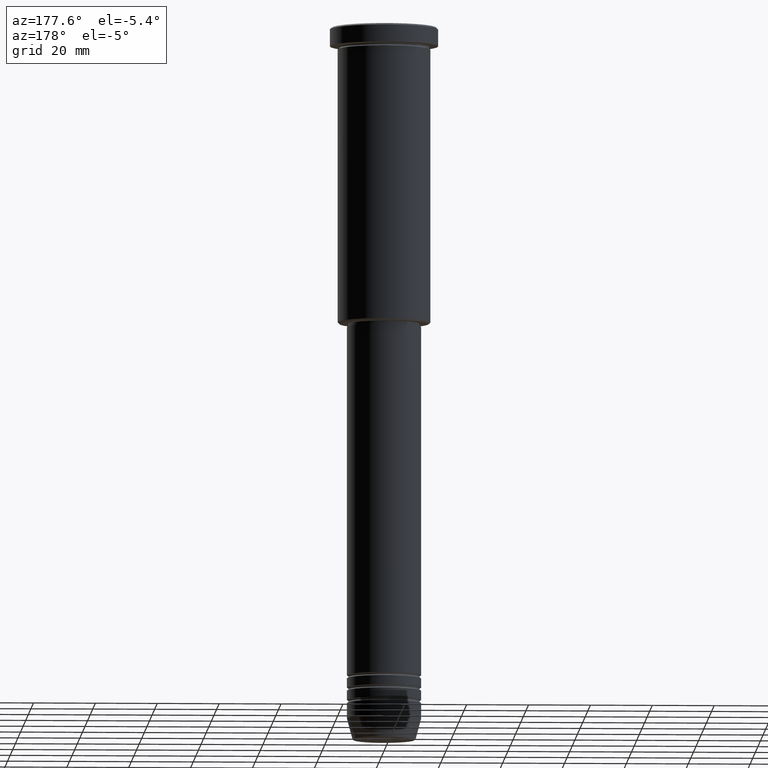
[diagram: clean part render]
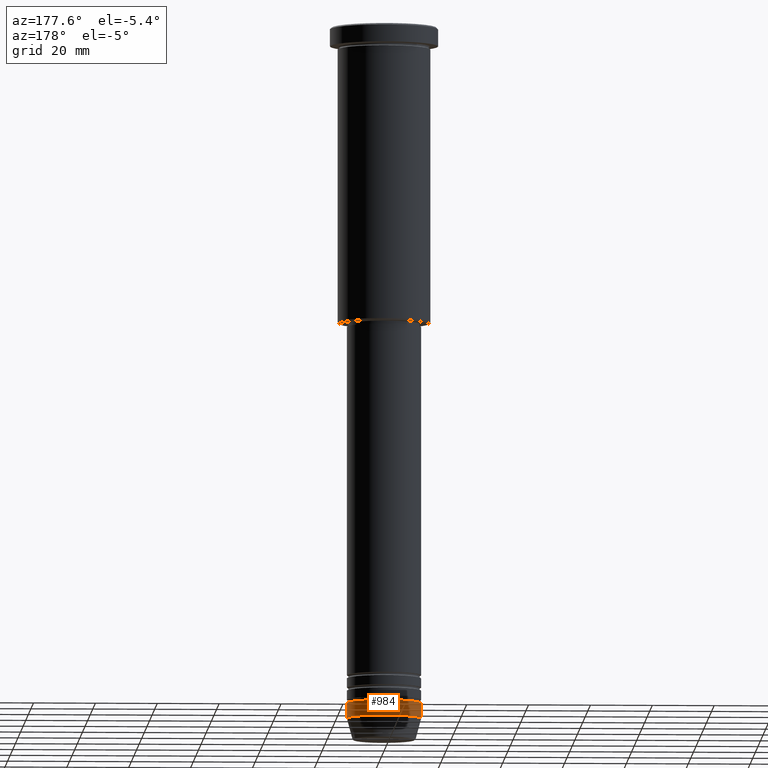
[diagram: same view with one face highlighted and labeled with its STEP entity id]
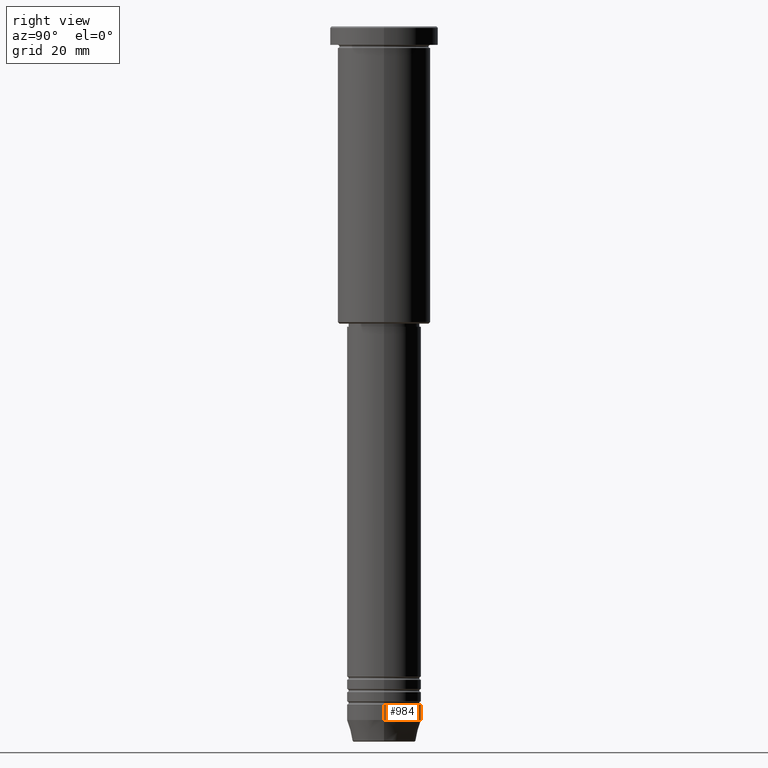
[diagram: same view with one face highlighted and labeled with its STEP entity id]
A machine part, auxiliary view. The second image highlights one B-rep face of the part: STEP entity #984.
A second angle (right view) of the same face is appended — the face is thin or edge-on in the first view.
In plain terms, the highlighted cylindrical surface (partial cylindrical patch) has radius 12 mm, axis along (-0, -0, 1).
Its self-contained STEP definition (entity closure, byte-faithful):
#12 = DIRECTION ( 'NONE',  ( -0.000000000000000000, -0.000000000000000000, 1.000000000000000000 ) ) ;
#46 = CARTESIAN_POINT ( 'NONE',  ( 0.000000000000000000, 0.000000000000000000, 0.000000000000000000 ) ) ;
#62 = VERTEX_POINT ( 'NONE', #264 ) ;
#79 = EDGE_LOOP ( 'NONE', ( #195, #369, #880, #533 ) ) ;
#115 = EDGE_CURVE ( 'NONE', #1079, #144, #914, .T. ) ;
#131 = CARTESIAN_POINT ( 'NONE',  ( 0.000000000000000000, 0.000000000000000000, -224.0000000000000284 ) ) ;
#144 = VERTEX_POINT ( 'NONE', #269 ) ;
#195 = ORIENTED_EDGE ( 'NONE', *, *, #385, .T. ) ;
#208 = DIRECTION ( 'NONE',  ( -0.000000000000000000, -0.000000000000000000, 1.000000000000000000 ) ) ;
#214 = EDGE_CURVE ( 'NONE', #144, #547, #319, .T. ) ;
#220 = CARTESIAN_POINT ( 'NONE',  ( -12.00000000000000000, 1.469576158976823947E-15, -219.0000000000000568 ) ) ;
#247 = EDGE_CURVE ( 'NONE', #62, #547, #539, .T. ) ;
#264 = CARTESIAN_POINT ( 'NONE',  ( -12.00000000000000000, 1.469576158976823947E-15, -224.0000000000000284 ) ) ;
#269 = CARTESIAN_POINT ( 'NONE',  ( 12.00000000000000000, 0.000000000000000000, -219.0000000000000568 ) ) ;
#287 = CARTESIAN_POINT ( 'NONE',  ( 12.00000000000000000, 0.000000000000000000, -224.0000000000000284 ) ) ;
#304 = CARTESIAN_POINT ( 'NONE',  ( 0.000000000000000000, 0.000000000000000000, -219.0000000000000568 ) ) ;
#319 = CIRCLE ( 'NONE', #813, 12.00000000000000000 ) ;
#369 = ORIENTED_EDGE ( 'NONE', *, *, #247, .T. ) ;
#385 = EDGE_CURVE ( 'NONE', #1079, #62, #583, .T. ) ;
#459 = CARTESIAN_POINT ( 'NONE',  ( -12.00000000000000000, 1.469576158976823947E-15, 0.000000000000000000 ) ) ;
#471 = CARTESIAN_POINT ( 'NONE',  ( 12.00000000000000000, 0.000000000000000000, 0.000000000000000000 ) ) ;
#482 = DIRECTION ( 'NONE',  ( 1.000000000000000000, 0.000000000000000000, 0.000000000000000000 ) ) ;
#527 = DIRECTION ( 'NONE',  ( 1.000000000000000000, 0.000000000000000000, 0.000000000000000000 ) ) ;
#533 = ORIENTED_EDGE ( 'NONE', *, *, #115, .F. ) ;
#539 = LINE ( 'NONE', #459, #852 ) ;
#547 = VERTEX_POINT ( 'NONE', #220 ) ;
#563 = DIRECTION ( 'NONE',  ( 1.000000000000000000, 0.000000000000000000, 0.000000000000000000 ) ) ;
#583 = CIRCLE ( 'NONE', #1144, 12.00000000000000000 ) ;
#679 = FACE_OUTER_BOUND ( 'NONE', #79, .T. ) ;
#813 = AXIS2_PLACEMENT_3D ( 'NONE', #304, #208, #563 ) ;
#852 = VECTOR ( 'NONE', #12, 1000.000000000000000 ) ;
#868 = CYLINDRICAL_SURFACE ( 'NONE', #933, 12.00000000000000000 ) ;
#880 = ORIENTED_EDGE ( 'NONE', *, *, #214, .F. ) ;
#914 = LINE ( 'NONE', #471, #1143 ) ;
#921 = DIRECTION ( 'NONE',  ( -0.000000000000000000, -0.000000000000000000, 1.000000000000000000 ) ) ;
#933 = AXIS2_PLACEMENT_3D ( 'NONE', #46, #1175, #527 ) ;
#984 = ADVANCED_FACE ( 'NONE', ( #679 ), #868, .T. ) ;
#1002 = DIRECTION ( 'NONE',  ( -0.000000000000000000, -0.000000000000000000, 1.000000000000000000 ) ) ;
#1079 = VERTEX_POINT ( 'NONE', #287 ) ;
#1143 = VECTOR ( 'NONE', #1002, 1000.000000000000000 ) ;
#1144 = AXIS2_PLACEMENT_3D ( 'NONE', #131, #921, #482 ) ;
#1175 = DIRECTION ( 'NONE',  ( -0.000000000000000000, -0.000000000000000000, 1.000000000000000000 ) ) ;